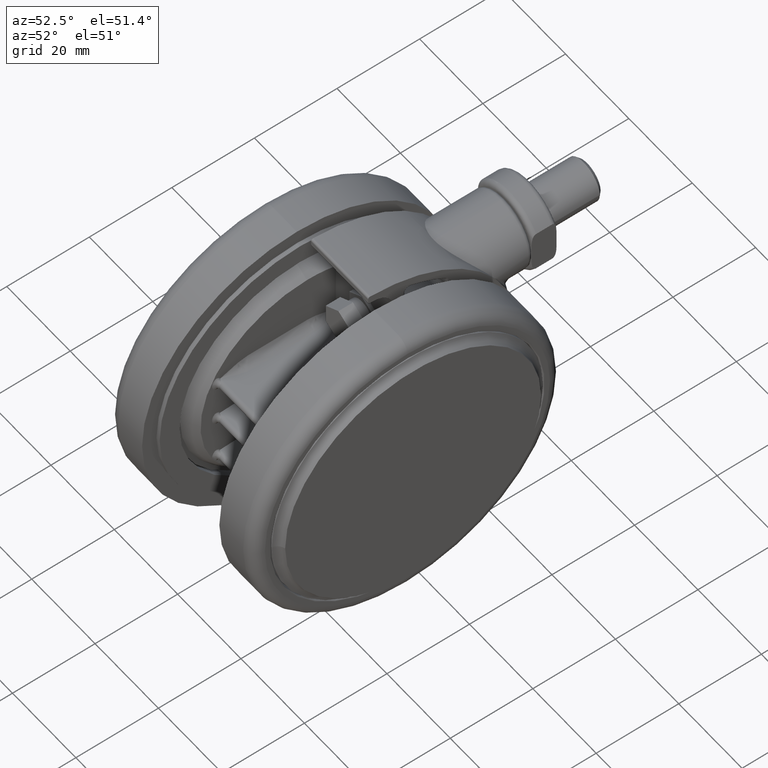
[diagram: clean part render]
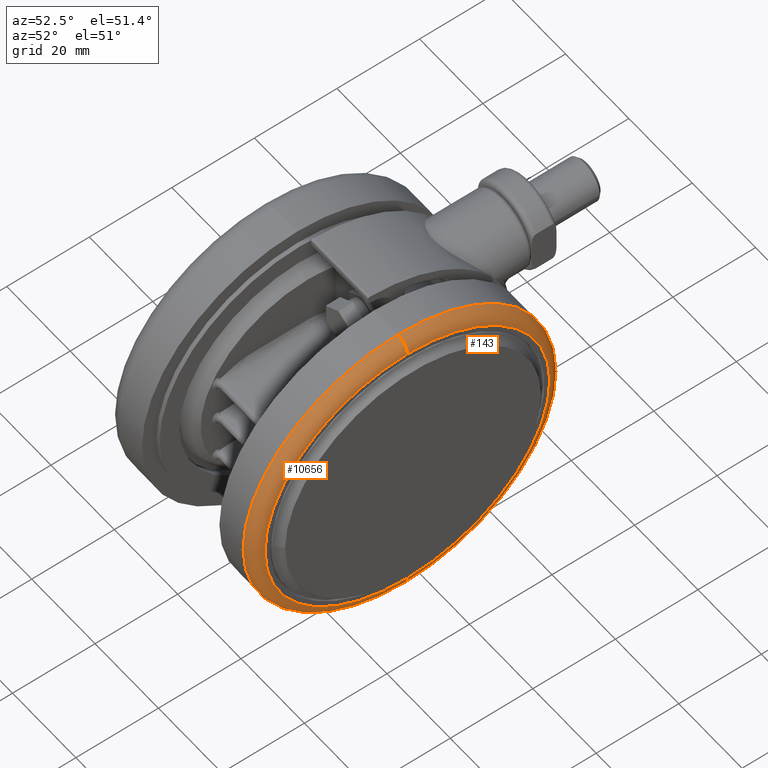
[diagram: same view with one multi-face feature highlighted, each face labeled with its STEP entity id]
A machine part, auxiliary view. The highlighted faces form ONE feature: a constant-radius fillet chain: 2 tangent blend faces with common blend radius 3 mm. The faces share edges in the B-rep.
Their STEP definitions:
[1] entity #143 (Torus):
#143 = ADVANCED_FACE ( 'NONE', ( #48211 ), #38309, .T. ) ;
#952 = DIRECTION ( 'NONE',  ( -1.000000000000000000, -3.120066846402655400E-015, 0.0000000000000000000 ) ) ;
#2852 = VERTEX_POINT ( 'NONE', #10099 ) ;
#2937 = DIRECTION ( 'NONE',  ( -0.0000000000000000000, 0.0000000000000000000, -1.000000000000000000 ) ) ;
#3171 = ORIENTED_EDGE ( 'NONE', *, *, #39487, .F. ) ;
#3541 = AXIS2_PLACEMENT_3D ( 'NONE', #6870, #2937, #10611 ) ;
#4252 = CARTESIAN_POINT ( 'NONE',  ( -5.204170427930421300E-015, -3.469446951953614200E-014, -1.799999999999928300 ) ) ;
#4486 = AXIS2_PLACEMENT_3D ( 'NONE', #4252, #30504, #8039 ) ;
#6870 = CARTESIAN_POINT ( 'NONE',  ( -5.204170427930421300E-015, -3.469446951953614200E-014, -4.799999999999929700 ) ) ;
#8039 = DIRECTION ( 'NONE',  ( 2.997602166487920300E-015, -1.000000000000000000, 0.0000000000000000000 ) ) ;
#9798 = DIRECTION ( 'NONE',  ( 1.000000000000000000, 2.997602166487920300E-015, 0.0000000000000000000 ) ) ;
#10099 = CARTESIAN_POINT ( 'NONE',  ( -1.222066771680300000E-013, 37.49999999999996400, -4.799999999999929700 ) ) ;
#10129 = ORIENTED_EDGE ( 'NONE', *, *, #35058, .F. ) ;
#10611 = DIRECTION ( 'NONE',  ( 2.997602166487920300E-015, -1.000000000000000000, 0.0000000000000000000 ) ) ;
#20266 = VERTEX_POINT ( 'NONE', #22437 ) ;
#21125 = CIRCLE ( 'NONE', #46006, 3.000000000000002700 ) ;
#21127 = CARTESIAN_POINT ( 'NONE',  ( -5.204170427930421300E-015, -3.469446951953614200E-014, -4.799999999999929700 ) ) ;
#21582 = CIRCLE ( 'NONE', #27914, 37.50000000000000000 ) ;
#22437 = CARTESIAN_POINT ( 'NONE',  ( -1.175265768984260500E-013, 34.49999999999997200, -1.799999999999928300 ) ) ;
#23393 = CARTESIAN_POINT ( 'NONE',  ( -1.128464766288220400E-013, 34.49999999999997200, -4.799999999999929700 ) ) ;
#24878 = DIRECTION ( 'NONE',  ( 2.997602166487919900E-015, -1.000000000000000000, 0.0000000000000000000 ) ) ;
#27164 = ORIENTED_EDGE ( 'NONE', *, *, #47273, .F. ) ;
#27168 = DIRECTION ( 'NONE',  ( 3.120066846402653500E-015, -1.000000000000000000, 0.0000000000000000000 ) ) ;
#27914 = AXIS2_PLACEMENT_3D ( 'NONE', #21127, #47274, #24878 ) ;
#28662 = ORIENTED_EDGE ( 'NONE', *, *, #38242, .T. ) ;
#29203 = AXIS2_PLACEMENT_3D ( 'NONE', #32265, #9798, #35986 ) ;
#30504 = DIRECTION ( 'NONE',  ( 0.0000000000000000000, -0.0000000000000000000, 1.000000000000000000 ) ) ;
#32265 = CARTESIAN_POINT ( 'NONE',  ( 9.821310431590283500E-014, -34.50000000000003600, -4.799999999999929700 ) ) ;
#35058 = EDGE_CURVE ( 'NONE', #20266, #39138, #39290, .T. ) ;
#35986 = DIRECTION ( 'NONE',  ( -2.997602166487918300E-015, 1.000000000000000000, 0.0000000000000000000 ) ) ;
#37167 = CARTESIAN_POINT ( 'NONE',  ( 9.821310431590283500E-014, -34.50000000000003600, -1.799999999999928300 ) ) ;
#38242 = EDGE_CURVE ( 'NONE', #20266, #2852, #21125, .T. ) ;
#38309 = TOROIDAL_SURFACE ( 'NONE', #3541, 34.50000000000000000, 3.000000000000000000 ) ;
#39138 = VERTEX_POINT ( 'NONE', #37167 ) ;
#39290 = CIRCLE ( 'NONE', #4486, 34.50000000000000000 ) ;
#39356 = EDGE_LOOP ( 'NONE', ( #10129, #28662, #3171, #27164 ) ) ;
#39430 = VERTEX_POINT ( 'NONE', #43043 ) ;
#39487 = EDGE_CURVE ( 'NONE', #39430, #2852, #21582, .T. ) ;
#43043 = CARTESIAN_POINT ( 'NONE',  ( 1.072059108153665800E-013, -37.50000000000003600, -4.799999999999929700 ) ) ;
#46006 = AXIS2_PLACEMENT_3D ( 'NONE', #23393, #952, #27168 ) ;
#47273 = EDGE_CURVE ( 'NONE', #39138, #39430, #47716, .T. ) ;
#47274 = DIRECTION ( 'NONE',  ( -0.0000000000000000000, 0.0000000000000000000, -1.000000000000000000 ) ) ;
#47716 = CIRCLE ( 'NONE', #29203, 3.000000000000002700 ) ;
#48211 = FACE_OUTER_BOUND ( 'NONE', #39356, .T. ) ;
[2] entity #10656 (Torus):
#306 = DIRECTION ( 'NONE',  ( 2.997602166487920300E-015, -1.000000000000000000, 0.0000000000000000000 ) ) ;
#952 = DIRECTION ( 'NONE',  ( -1.000000000000000000, -3.120066846402655400E-015, 0.0000000000000000000 ) ) ;
#2176 = AXIS2_PLACEMENT_3D ( 'NONE', #45134, #22763, #306 ) ;
#2852 = VERTEX_POINT ( 'NONE', #10099 ) ;
#6568 = CIRCLE ( 'NONE', #43728, 37.50000000000000000 ) ;
#6851 = EDGE_CURVE ( 'NONE', #2852, #39430, #6568, .T. ) ;
#9798 = DIRECTION ( 'NONE',  ( 1.000000000000000000, 2.997602166487920300E-015, 0.0000000000000000000 ) ) ;
#10099 = CARTESIAN_POINT ( 'NONE',  ( -1.222066771680300000E-013, 37.49999999999996400, -4.799999999999929700 ) ) ;
#10656 = ADVANCED_FACE ( 'NONE', ( #35704 ), #15769, .T. ) ;
#13147 = DIRECTION ( 'NONE',  ( -0.0000000000000000000, 0.0000000000000000000, -1.000000000000000000 ) ) ;
#14681 = EDGE_LOOP ( 'NONE', ( #20565, #23532, #19810, #47369 ) ) ;
#15769 = TOROIDAL_SURFACE ( 'NONE', #17872, 34.50000000000000000, 3.000000000000000000 ) ;
#17872 = AXIS2_PLACEMENT_3D ( 'NONE', #24460, #13147, #28230 ) ;
#18116 = DIRECTION ( 'NONE',  ( -0.0000000000000000000, 0.0000000000000000000, -1.000000000000000000 ) ) ;
#19810 = ORIENTED_EDGE ( 'NONE', *, *, #47273, .T. ) ;
#20266 = VERTEX_POINT ( 'NONE', #22437 ) ;
#20565 = ORIENTED_EDGE ( 'NONE', *, *, #38242, .F. ) ;
#21125 = CIRCLE ( 'NONE', #46006, 3.000000000000002700 ) ;
#22437 = CARTESIAN_POINT ( 'NONE',  ( -1.175265768984260500E-013, 34.49999999999997200, -1.799999999999928300 ) ) ;
#22763 = DIRECTION ( 'NONE',  ( 0.0000000000000000000, -0.0000000000000000000, 1.000000000000000000 ) ) ;
#23393 = CARTESIAN_POINT ( 'NONE',  ( -1.128464766288220400E-013, 34.49999999999997200, -4.799999999999929700 ) ) ;
#23532 = ORIENTED_EDGE ( 'NONE', *, *, #45675, .F. ) ;
#23941 = CIRCLE ( 'NONE', #2176, 34.50000000000000000 ) ;
#24460 = CARTESIAN_POINT ( 'NONE',  ( -5.204170427930421300E-015, -3.469446951953614200E-014, -4.799999999999929700 ) ) ;
#27168 = DIRECTION ( 'NONE',  ( 3.120066846402653500E-015, -1.000000000000000000, 0.0000000000000000000 ) ) ;
#28230 = DIRECTION ( 'NONE',  ( 2.997602166487920300E-015, -1.000000000000000000, 0.0000000000000000000 ) ) ;
#29203 = AXIS2_PLACEMENT_3D ( 'NONE', #32265, #9798, #35986 ) ;
#32265 = CARTESIAN_POINT ( 'NONE',  ( 9.821310431590283500E-014, -34.50000000000003600, -4.799999999999929700 ) ) ;
#35704 = FACE_OUTER_BOUND ( 'NONE', #14681, .T. ) ;
#35986 = DIRECTION ( 'NONE',  ( -2.997602166487918300E-015, 1.000000000000000000, 0.0000000000000000000 ) ) ;
#37167 = CARTESIAN_POINT ( 'NONE',  ( 9.821310431590283500E-014, -34.50000000000003600, -1.799999999999928300 ) ) ;
#38242 = EDGE_CURVE ( 'NONE', #20266, #2852, #21125, .T. ) ;
#39138 = VERTEX_POINT ( 'NONE', #37167 ) ;
#39430 = VERTEX_POINT ( 'NONE', #43043 ) ;
#40514 = CARTESIAN_POINT ( 'NONE',  ( -5.204170427930421300E-015, -3.469446951953614200E-014, -4.799999999999929700 ) ) ;
#43043 = CARTESIAN_POINT ( 'NONE',  ( 1.072059108153665800E-013, -37.50000000000003600, -4.799999999999929700 ) ) ;
#43728 = AXIS2_PLACEMENT_3D ( 'NONE', #40514, #18116, #44280 ) ;
#44280 = DIRECTION ( 'NONE',  ( 2.997602166487919900E-015, -1.000000000000000000, 0.0000000000000000000 ) ) ;
#45134 = CARTESIAN_POINT ( 'NONE',  ( -5.204170427930421300E-015, -3.469446951953614200E-014, -1.799999999999928300 ) ) ;
#45675 = EDGE_CURVE ( 'NONE', #39138, #20266, #23941, .T. ) ;
#46006 = AXIS2_PLACEMENT_3D ( 'NONE', #23393, #952, #27168 ) ;
#47273 = EDGE_CURVE ( 'NONE', #39138, #39430, #47716, .T. ) ;
#47369 = ORIENTED_EDGE ( 'NONE', *, *, #6851, .F. ) ;
#47716 = CIRCLE ( 'NONE', #29203, 3.000000000000002700 ) ;